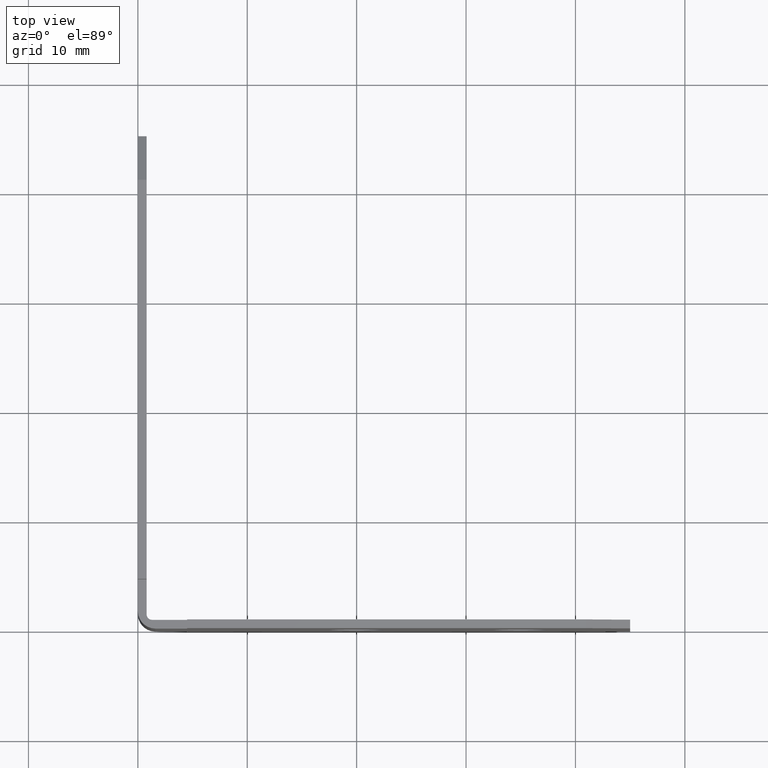
[diagram: clean part render]
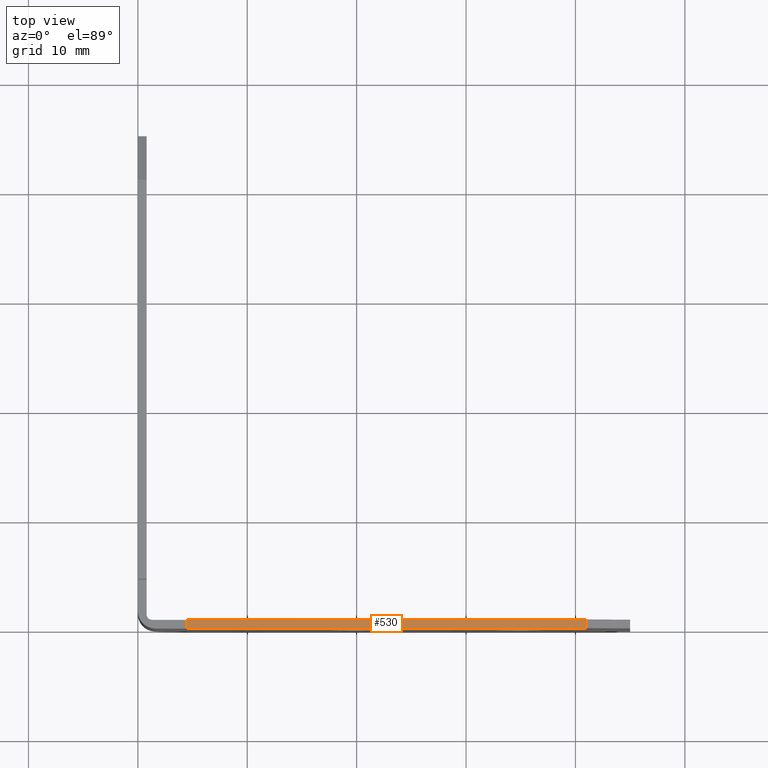
[diagram: same view with one face highlighted and labeled with its STEP entity id]
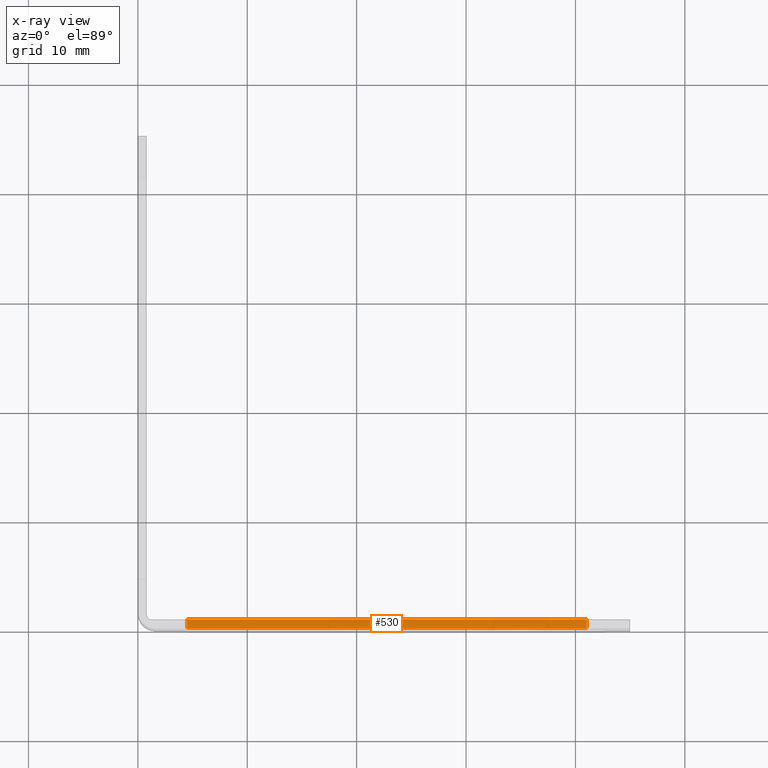
[diagram: x-ray of the same camera — body ghosted, the highlighted face saturated]
A machine part, top view. The second image highlights one B-rep face of the part: STEP entity #530.
The next image is the same camera in x-ray: the body ghosted, the highlighted face saturated — about 0% of this face is hidden behind the body in this view.
In plain terms, the highlighted planar face has unit normal (0, 0, 1).
Its self-contained STEP definition (entity closure, byte-faithful):
#42=PLANE('',#591);
#68=FACE_OUTER_BOUND('',#102,.T.);
#102=EDGE_LOOP('',(#495,#496,#497,#498));
#145=LINE('',#839,#205);
#150=LINE('',#852,#210);
#161=LINE('',#871,#221);
#162=LINE('',#873,#222);
#205=VECTOR('',#688,10.);
#210=VECTOR('',#701,10.);
#221=VECTOR('',#720,10.);
#222=VECTOR('',#723,10.);
#273=VERTEX_POINT('',#836);
#274=VERTEX_POINT('',#838);
#277=VERTEX_POINT('',#849);
#278=VERTEX_POINT('',#851);
#337=EDGE_CURVE('',#273,#274,#145,.T.);
#342=EDGE_CURVE('',#277,#278,#150,.T.);
#353=EDGE_CURVE('',#273,#278,#161,.T.);
#354=EDGE_CURVE('',#277,#274,#162,.T.);
#495=ORIENTED_EDGE('',*,*,#353,.T.);
#496=ORIENTED_EDGE('',*,*,#342,.F.);
#497=ORIENTED_EDGE('',*,*,#354,.T.);
#498=ORIENTED_EDGE('',*,*,#337,.F.);
#530=ADVANCED_FACE('',(#68),#42,.T.);
#591=AXIS2_PLACEMENT_3D('',#876,#728,#729);
#688=DIRECTION('',(-1.,-1.72701359386135E-16,0.));
#701=DIRECTION('',(1.,1.04854396770154E-16,0.));
#720=DIRECTION('',(0.,1.,0.));
#723=DIRECTION('',(1.04854396770154E-16,-1.,0.));
#728=DIRECTION('center_axis',(0.,0.,1.));
#729=DIRECTION('ref_axis',(1.,0.,0.));
#836=CARTESIAN_POINT('',(41.,-6.93889390390723E-16,10.25));
#838=CARTESIAN_POINT('',(4.5,-6.93889390390723E-15,10.25));
#839=CARTESIAN_POINT('',(45.,0.,10.25));
#849=CARTESIAN_POINT('',(4.5,0.799999999999993,10.25));
#851=CARTESIAN_POINT('',(41.,0.799999999999997,10.25));
#852=CARTESIAN_POINT('',(0.,0.799999999999992,10.25));
#871=CARTESIAN_POINT('',(41.,0.599999999999996,10.25));
#873=CARTESIAN_POINT('',(4.5,0.599999999999993,10.25));
#876=CARTESIAN_POINT('Origin',(22.5,0.399999999999995,10.25));